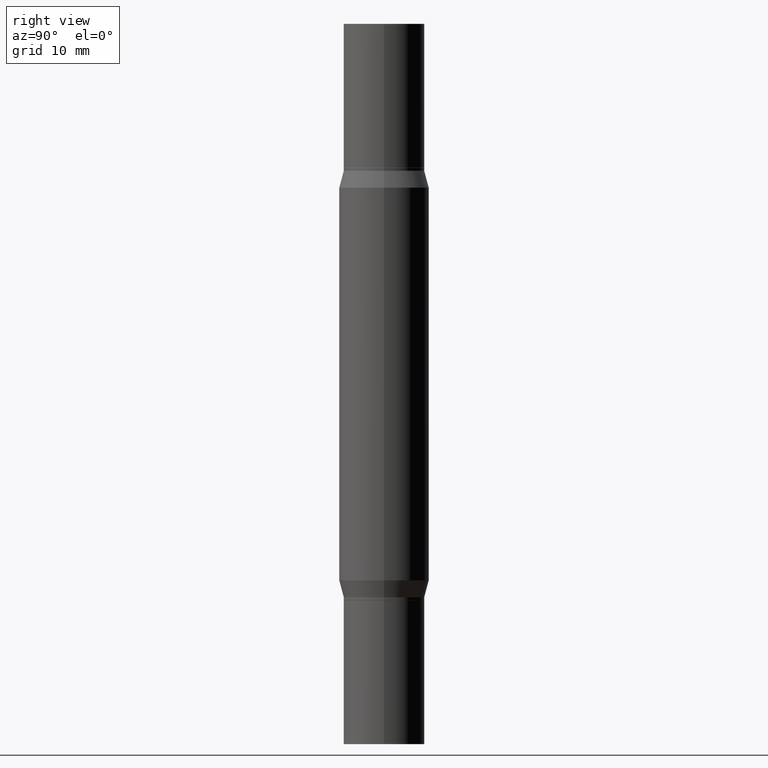
[diagram: clean part render]
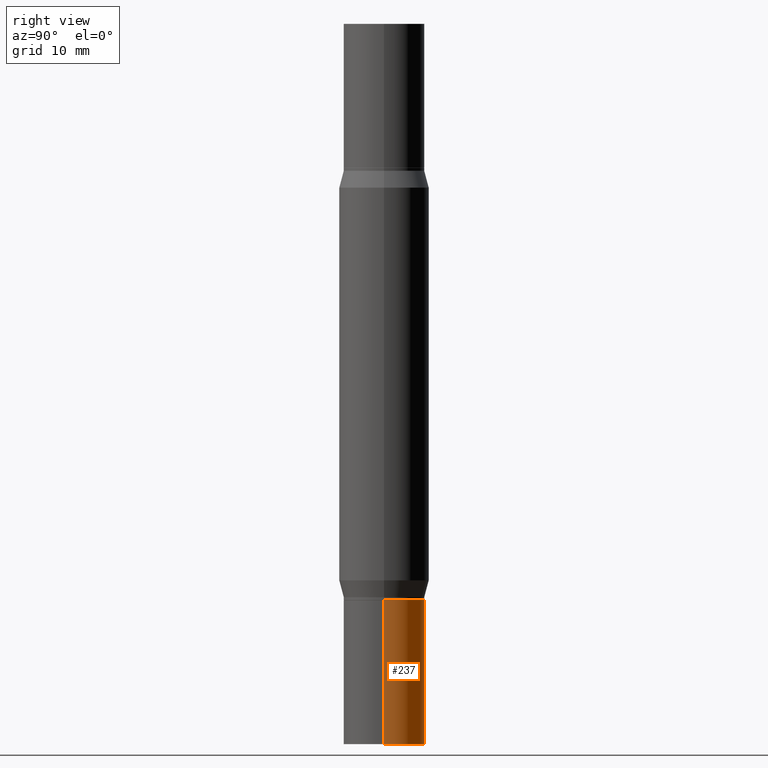
[diagram: same view with one face highlighted and labeled with its STEP entity id]
A machine part, right view. The second image highlights one B-rep face of the part: STEP entity #237.
In plain terms, the highlighted cylindrical surface (partial cylindrical patch) has radius 3.5712 mm, axis along (-0, 0, 1).
Its self-contained STEP definition (entity closure, byte-faithful):
#12 = DIRECTION ( 'NONE',  ( 1.000000000000000000, -6.982962677686266711E-15, 4.876176775795936353E-29 ) ) ;
#16 = CARTESIAN_POINT ( 'NONE',  ( -0.1406000000000000028, -6.856809925918377173E-15, -2.000000000000000444 ) ) ;
#82 = VERTEX_POINT ( 'NONE', #220 ) ;
#90 = DIRECTION ( 'NONE',  ( -2.445468806185136597E-29, 3.491481338843145583E-15, 1.000000000000000000 ) ) ;
#161 = ORIENTED_EDGE ( 'NONE', *, *, #236, .T. ) ;
#181 = VECTOR ( 'NONE', #246, 39.37007874015748143 ) ;
#220 = CARTESIAN_POINT ( 'NONE',  ( 0.1406000000000000028, -9.710507899590554837E-15, -2.500000000000000000 ) ) ;
#223 = EDGE_CURVE ( 'NONE', #82, #422, #766, .T. ) ;
#236 = EDGE_CURVE ( 'NONE', #688, #296, #619, .T. ) ;
#237 = ADVANCED_FACE ( 'NONE', ( #921 ), #398, .T. ) ;
#242 = CARTESIAN_POINT ( 'NONE',  ( 0.000000000000000000, 0.000000000000000000, 0.000000000000000000 ) ) ;
#246 = DIRECTION ( 'NONE',  ( -2.445468806185136877E-29, 3.491481338843145188E-15, 1.000000000000000000 ) ) ;
#270 = CARTESIAN_POINT ( 'NONE',  ( 4.890937612370273754E-29, -6.982962677686291954E-15, -2.000000000000000444 ) ) ;
#283 = DIRECTION ( 'NONE',  ( -2.445468806185136597E-29, 3.491481338843145583E-15, 1.000000000000000000 ) ) ;
#288 = AXIS2_PLACEMENT_3D ( 'NONE', #270, #283, #442 ) ;
#296 = VERTEX_POINT ( 'NONE', #16 ) ;
#310 = EDGE_CURVE ( 'NONE', #82, #688, #776, .T. ) ;
#319 = VECTOR ( 'NONE', #914, 39.37007874015748143 ) ;
#332 = CARTESIAN_POINT ( 'NONE',  ( 0.1406000000000000028, -7.964767230168980271E-15, -2.000000000000000444 ) ) ;
#397 = CARTESIAN_POINT ( 'NONE',  ( -0.1406000000000000028, -6.856809925918377173E-15, -2.500000000000000000 ) ) ;
#398 = CYLINDRICAL_SURFACE ( 'NONE', #888, 0.1406000000000000028 ) ;
#403 = CARTESIAN_POINT ( 'NONE',  ( -0.1406000000000000028, 9.990230864787008809E-16, -6.916022736898397739E-30 ) ) ;
#422 = VERTEX_POINT ( 'NONE', #332 ) ;
#442 = DIRECTION ( 'NONE',  ( 1.000000000000000000, -6.982962677686265133E-15, 0.000000000000000000 ) ) ;
#577 = DIRECTION ( 'NONE',  ( 1.000000000000000000, -6.982962677686272233E-15, 0.000000000000000000 ) ) ;
#578 = EDGE_LOOP ( 'NONE', ( #891, #161, #783, #584 ) ) ;
#584 = ORIENTED_EDGE ( 'NONE', *, *, #223, .F. ) ;
#592 = CIRCLE ( 'NONE', #288, 0.1406000000000000028 ) ;
#619 = LINE ( 'NONE', #403, #181 ) ;
#647 = DIRECTION ( 'NONE',  ( -2.445468806185136597E-29, 3.491481338843145583E-15, 1.000000000000000000 ) ) ;
#688 = VERTEX_POINT ( 'NONE', #397 ) ;
#707 = CARTESIAN_POINT ( 'NONE',  ( 6.113672015462842613E-29, -8.728703347107864943E-15, -2.500000000000000000 ) ) ;
#766 = LINE ( 'NONE', #911, #319 ) ;
#776 = CIRCLE ( 'NONE', #917, 0.1406000000000000028 ) ;
#783 = ORIENTED_EDGE ( 'NONE', *, *, #930, .F. ) ;
#888 = AXIS2_PLACEMENT_3D ( 'NONE', #242, #90, #12 ) ;
#891 = ORIENTED_EDGE ( 'NONE', *, *, #310, .T. ) ;
#911 = CARTESIAN_POINT ( 'NONE',  ( 0.1406000000000000028, -9.818045524826891058E-16, 6.855904546769086274E-30 ) ) ;
#914 = DIRECTION ( 'NONE',  ( -2.445468806185136877E-29, 3.491481338843145188E-15, 1.000000000000000000 ) ) ;
#917 = AXIS2_PLACEMENT_3D ( 'NONE', #707, #647, #577 ) ;
#921 = FACE_OUTER_BOUND ( 'NONE', #578, .T. ) ;
#930 = EDGE_CURVE ( 'NONE', #422, #296, #592, .T. ) ;